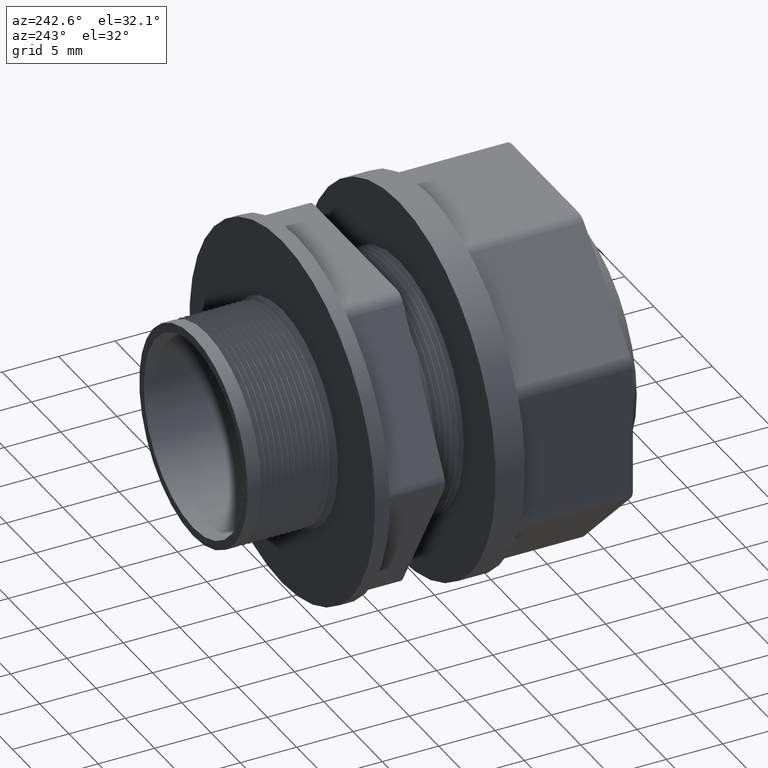
[diagram: clean part render]
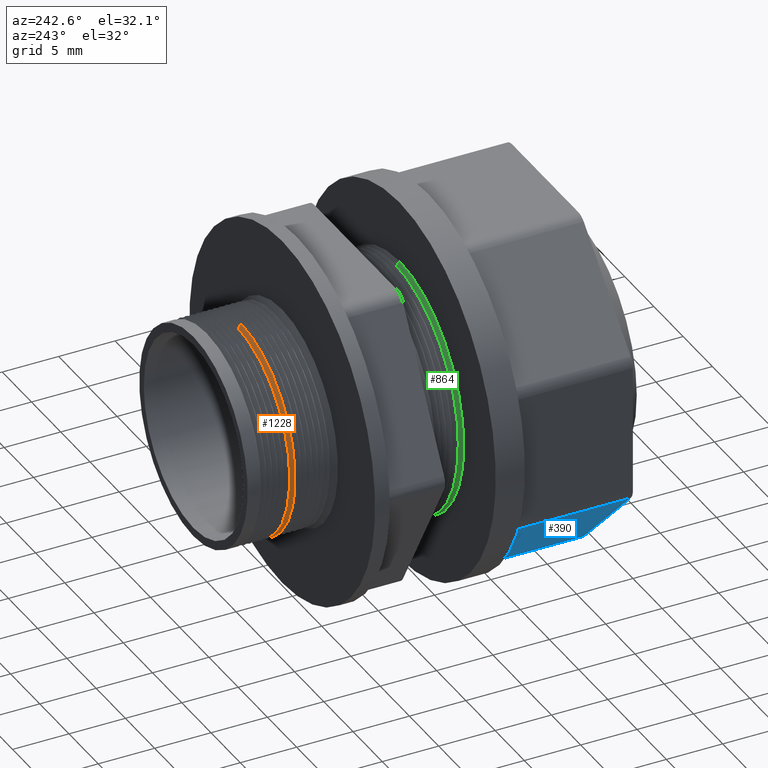
[diagram: same view with three faces highlighted in distinct colors, each labeled with its STEP entity id]
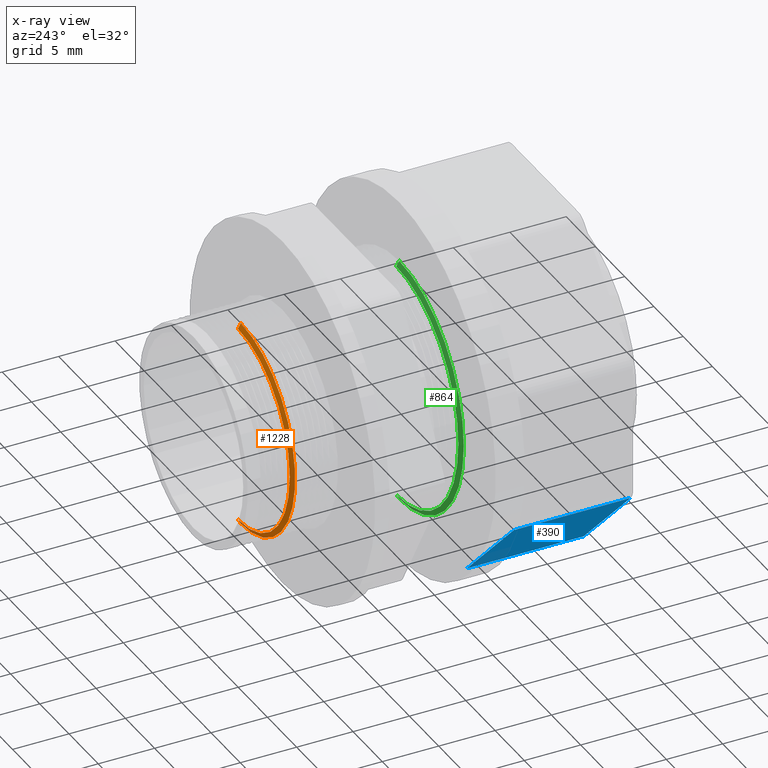
[diagram: x-ray of the same camera — body ghosted, the three highlighted faces saturated]
A machine part, auxiliary view with three faces highlighted in distinct colors.
The next image is the same camera in x-ray (body ghosted, the three faces saturated) — at least one of them is partly hidden behind the body in this view.
Their STEP definitions:

[orange] entity #1228 — the highlighted conical surface has half-angle 60.018 deg.
#359 = VERTEX_POINT ( 'NONE', #1939 ) ;
#362 = VERTEX_POINT ( 'NONE', #1938 ) ;
#363 = VERTEX_POINT ( 'NONE', #1937 ) ;
#365 = EDGE_CURVE ( 'NONE', #359, #363, #1871, .T. ) ;
#614 = EDGE_CURVE ( 'NONE', #362, #615, #2498, .T. ) ;
#615 = VERTEX_POINT ( 'NONE', #2388 ) ;
#1051 = EDGE_CURVE ( 'NONE', #615, #363, #3141, .T. ) ;
#1052 = ORIENTED_EDGE ( 'NONE', *, *, #1051, .F. ) ;
#1060 = ORIENTED_EDGE ( 'NONE', *, *, #614, .F. ) ;
#1171 = ORIENTED_EDGE ( 'NONE', *, *, #1245, .F. ) ;
#1172 = EDGE_LOOP ( 'NONE', ( #1060, #1171, #1226, #1052 ) ) ;
#1226 = ORIENTED_EDGE ( 'NONE', *, *, #365, .T. ) ;
#1228 = ADVANCED_FACE ( 'NONE', ( #3404 ), #3403, .T. ) ;
#1245 = EDGE_CURVE ( 'NONE', #359, #362, #3530, .T. ) ;
#1868 = DIRECTION ( 'NONE',  ( 0.0000000000000000000, -0.4997279054258417200, -0.8661824406778867400 ) ) ;
#1869 = VECTOR ( 'NONE', #1868, 39.37007874015748900 ) ;
#1870 = CARTESIAN_POINT ( 'NONE',  ( 0.0000000000000000000, 1.160000000000000100, -0.3749999999999999400 ) ) ;
#1871 = LINE ( 'NONE', #1870, #1869 ) ;
#1937 = CARTESIAN_POINT ( 'NONE',  ( 4.486310250598193200E-017, 1.164999092359754600, -0.3663350325760649200 ) ) ;
#1938 = CARTESIAN_POINT ( 'NONE',  ( 4.380252740682312600E-017, 1.174991837162775200, 0.3490145267796635500 ) ) ;
#1939 = CARTESIAN_POINT ( 'NONE',  ( 0.0000000000000000000, 1.174991837162775200, -0.3490145267796635500 ) ) ;
#2388 = CARTESIAN_POINT ( 'NONE',  ( 0.0000000000000000000, 1.164999092359754600, 0.3663350325760649200 ) ) ;
#2389 = DIRECTION ( 'NONE',  ( 1.060767553453816200E-016, -0.4997279054258417200, 0.8661824406778867400 ) ) ;
#2390 = VECTOR ( 'NONE', #2389, 39.37007874015748900 ) ;
#2391 = CARTESIAN_POINT ( 'NONE',  ( 4.592425496802573600E-017, 1.160000000000000100, 0.3749999999999999400 ) ) ;
#2498 = LINE ( 'NONE', #2391, #2390 ) ;
#3139 = CARTESIAN_POINT ( 'NONE',  ( 0.0000000000000000000, 1.164999092359754600, 0.0000000000000000000 ) ) ;
#3140 = AXIS2_PLACEMENT_3D ( 'NONE', #3139, #3305, #3304 ) ;
#3141 = CIRCLE ( 'NONE', #3140, 0.3663350325760648100 ) ;
#3304 = DIRECTION ( 'NONE',  ( 0.0000000000000000000, 0.0000000000000000000, -1.000000000000000000 ) ) ;
#3305 = DIRECTION ( 'NONE',  ( 0.0000000000000000000, -1.000000000000000000, 0.0000000000000000000 ) ) ;
#3399 = DIRECTION ( 'NONE',  ( 0.0000000000000000000, 0.0000000000000000000, -1.000000000000000000 ) ) ;
#3400 = DIRECTION ( 'NONE',  ( 0.0000000000000000000, -1.000000000000000000, 0.0000000000000000000 ) ) ;
#3401 = CARTESIAN_POINT ( 'NONE',  ( 0.0000000000000000000, 1.160000000000000100, 0.0000000000000000000 ) ) ;
#3402 = AXIS2_PLACEMENT_3D ( 'NONE', #3401, #3400, #3399 ) ;
#3403 = CONICAL_SURFACE ( 'NONE', #3402, 0.3749999999999999400, 1.047511710461942500 ) ;
#3404 = FACE_OUTER_BOUND ( 'NONE', #1172, .T. ) ;
#3523 = DIRECTION ( 'NONE',  ( 0.0000000000000000000, 0.0000000000000000000, 1.000000000000000000 ) ) ;
#3524 = DIRECTION ( 'NONE',  ( -0.0000000000000000000, 1.000000000000000000, -0.0000000000000000000 ) ) ;
#3525 = CARTESIAN_POINT ( 'NONE',  ( 0.0000000000000000000, 1.174991837162775200, 0.0000000000000000000 ) ) ;
#3526 = AXIS2_PLACEMENT_3D ( 'NONE', #3525, #3524, #3523 ) ;
#3530 = CIRCLE ( 'NONE', #3526, 0.3490145267796635500 ) ;

[blue] entity #390 — the highlighted planar face has unit normal (-0.7071, 0, -0.7071).
#3 = ORIENTED_EDGE ( 'NONE', *, *, #202, .T. ) ;
#4 = ORIENTED_EDGE ( 'NONE', *, *, #5, .T. ) ;
#5 = EDGE_CURVE ( 'NONE', #200, #127, #1213, .T. ) ;
#127 = VERTEX_POINT ( 'NONE', #1515 ) ;
#131 = EDGE_CURVE ( 'NONE', #134, #127, #1527, .T. ) ;
#134 = VERTEX_POINT ( 'NONE', #1474 ) ;
#200 = VERTEX_POINT ( 'NONE', #1641 ) ;
#202 = EDGE_CURVE ( 'NONE', #203, #200, #1833, .T. ) ;
#203 = VERTEX_POINT ( 'NONE', #1800 ) ;
#390 = ADVANCED_FACE ( 'NONE', ( #1999 ), #1997, .T. ) ;
#444 = EDGE_LOOP ( 'NONE', ( #445, #446, #3, #4 ) ) ;
#445 = ORIENTED_EDGE ( 'NONE', *, *, #131, .F. ) ;
#446 = ORIENTED_EDGE ( 'NONE', *, *, #447, .T. ) ;
#447 = EDGE_CURVE ( 'NONE', #134, #203, #1955, .T. ) ;
#1210 = DIRECTION ( 'NONE',  ( 0.0000000000000000000, -1.000000000000000000, 0.0000000000000000000 ) ) ;
#1211 = VECTOR ( 'NONE', #1210, 39.37007874015748100 ) ;
#1212 = CARTESIAN_POINT ( 'NONE',  ( -0.2590306627407983900, 0.5100000000000000100, -0.5753553390593273400 ) ) ;
#1213 = LINE ( 'NONE', #1212, #1211 ) ;
#1474 = CARTESIAN_POINT ( 'NONE',  ( -0.5753553390593273400, 0.1019999999999999900, -0.2590306627407988900 ) ) ;
#1515 = CARTESIAN_POINT ( 'NONE',  ( -0.2590306627407983300, 0.1019999999999999900, -0.5753553390593274500 ) ) ;
#1527 = LINE ( 'NONE', #1565, #1558 ) ;
#1557 = DIRECTION ( 'NONE',  ( 0.7071067811865479100, 0.0000000000000000000, -0.7071067811865470200 ) ) ;
#1558 = VECTOR ( 'NONE', #1557, 39.37007874015748900 ) ;
#1565 = CARTESIAN_POINT ( 'NONE',  ( -0.6521930009000629400, 0.1019999999999999900, -0.1821930009000633200 ) ) ;
#1641 = CARTESIAN_POINT ( 'NONE',  ( -0.2590306627407984500, 0.5100000000000000100, -0.5753553390593273400 ) ) ;
#1800 = CARTESIAN_POINT ( 'NONE',  ( -0.5753553390593273400, 0.5100000000000000100, -0.2590306627407988300 ) ) ;
#1801 = DIRECTION ( 'NONE',  ( 0.7071067811865479100, 0.0000000000000000000, -0.7071067811865471300 ) ) ;
#1802 = VECTOR ( 'NONE', #1801, 39.37007874015748100 ) ;
#1832 = CARTESIAN_POINT ( 'NONE',  ( -0.5899999999999999700, 0.5100000000000000100, -0.2443860018001262300 ) ) ;
#1833 = LINE ( 'NONE', #1832, #1802 ) ;
#1952 = DIRECTION ( 'NONE',  ( -0.0000000000000000000, 1.000000000000000000, -0.0000000000000000000 ) ) ;
#1953 = VECTOR ( 'NONE', #1952, 39.37007874015748100 ) ;
#1954 = CARTESIAN_POINT ( 'NONE',  ( -0.5753553390593273400, 0.5100000000000000100, -0.2590306627407988300 ) ) ;
#1955 = LINE ( 'NONE', #1954, #1953 ) ;
#1993 = DIRECTION ( 'NONE',  ( -0.7071067811865479100, 0.0000000000000000000, 0.7071067811865470200 ) ) ;
#1994 = DIRECTION ( 'NONE',  ( -0.7071067811865471300, 0.0000000000000000000, -0.7071067811865480200 ) ) ;
#1995 = CARTESIAN_POINT ( 'NONE',  ( -0.5899999999999999700, 0.5100000000000000100, -0.2443860018001262300 ) ) ;
#1996 = AXIS2_PLACEMENT_3D ( 'NONE', #1995, #1994, #1993 ) ;
#1997 = PLANE ( 'NONE',  #1996 ) ;
#1999 = FACE_OUTER_BOUND ( 'NONE', #444, .T. ) ;

[green] entity #864 — the highlighted conical surface has half-angle 59.505 deg.
#702 = VERTEX_POINT ( 'NONE', #2576 ) ;
#704 = EDGE_CURVE ( 'NONE', #717, #702, #2575, .T. ) ;
#716 = VERTEX_POINT ( 'NONE', #2661 ) ;
#717 = VERTEX_POINT ( 'NONE', #2660 ) ;
#730 = EDGE_CURVE ( 'NONE', #716, #731, #2606, .T. ) ;
#731 = VERTEX_POINT ( 'NONE', #2602 ) ;
#820 = EDGE_CURVE ( 'NONE', #702, #731, #2706, .T. ) ;
#863 = EDGE_CURVE ( 'NONE', #717, #716, #2822, .T. ) ;
#864 = ADVANCED_FACE ( 'NONE', ( #2829 ), #2843, .T. ) ;
#937 = ORIENTED_EDGE ( 'NONE', *, *, #730, .F. ) ;
#939 = ORIENTED_EDGE ( 'NONE', *, *, #704, .T. ) ;
#949 = ORIENTED_EDGE ( 'NONE', *, *, #863, .F. ) ;
#951 = ORIENTED_EDGE ( 'NONE', *, *, #820, .T. ) ;
#959 = EDGE_LOOP ( 'NONE', ( #937, #949, #939, #951 ) ) ;
#2574 = CARTESIAN_POINT ( 'NONE',  ( 0.0000000000000000000, 0.6119999999999998800, -0.4350000000000000500 ) ) ;
#2575 = LINE ( 'NONE', #2574, #2598 ) ;
#2576 = CARTESIAN_POINT ( 'NONE',  ( 0.0000000000000000000, 0.6119999999999998800, -0.4350000000000000500 ) ) ;
#2597 = DIRECTION ( 'NONE',  ( 0.0000000000000000000, -0.5074644682075845100, -0.8616726835096917300 ) ) ;
#2598 = VECTOR ( 'NONE', #2597, 39.37007874015748100 ) ;
#2602 = CARTESIAN_POINT ( 'NONE',  ( 5.327213576290987000E-017, 0.6119999999999998800, 0.4350000000000000500 ) ) ;
#2603 = DIRECTION ( 'NONE',  ( 1.055244693772854200E-016, -0.5074644682075845100, 0.8616726835096917300 ) ) ;
#2604 = VECTOR ( 'NONE', #2603, 39.37007874015748100 ) ;
#2605 = CARTESIAN_POINT ( 'NONE',  ( 5.327213576290987000E-017, 0.6119999999999998800, 0.4350000000000000500 ) ) ;
#2606 = LINE ( 'NONE', #2605, #2604 ) ;
#2660 = CARTESIAN_POINT ( 'NONE',  ( 0.0000000000000000000, 0.6221995427989423000, -0.4176812161939553200 ) ) ;
#2661 = CARTESIAN_POINT ( 'NONE',  ( 5.221166610524998100E-017, 0.6221995427989423000, 0.4176812161939553200 ) ) ;
#2702 = DIRECTION ( 'NONE',  ( 0.0000000000000000000, 0.0000000000000000000, 1.000000000000000000 ) ) ;
#2703 = DIRECTION ( 'NONE',  ( -0.0000000000000000000, 1.000000000000000000, -0.0000000000000000000 ) ) ;
#2704 = CARTESIAN_POINT ( 'NONE',  ( 0.0000000000000000000, 0.6119999999999998800, 0.0000000000000000000 ) ) ;
#2705 = AXIS2_PLACEMENT_3D ( 'NONE', #2704, #2703, #2702 ) ;
#2706 = CIRCLE ( 'NONE', #2705, 0.4350000000000000500 ) ;
#2822 = CIRCLE ( 'NONE', #2831, 0.4176812161939553200 ) ;
#2826 = DIRECTION ( 'NONE',  ( 0.0000000000000000000, 0.0000000000000000000, -1.000000000000000000 ) ) ;
#2827 = DIRECTION ( 'NONE',  ( 0.0000000000000000000, -1.000000000000000000, 0.0000000000000000000 ) ) ;
#2828 = CARTESIAN_POINT ( 'NONE',  ( 0.0000000000000000000, 0.6221995427989423000, 0.0000000000000000000 ) ) ;
#2829 = FACE_OUTER_BOUND ( 'NONE', #959, .T. ) ;
#2830 = DIRECTION ( 'NONE',  ( -0.0000000000000000000, 1.000000000000000000, -0.0000000000000000000 ) ) ;
#2831 = AXIS2_PLACEMENT_3D ( 'NONE', #2828, #2830, #2844 ) ;
#2842 = AXIS2_PLACEMENT_3D ( 'NONE', #2845, #2827, #2826 ) ;
#2843 = CONICAL_SURFACE ( 'NONE', #2842, 0.4350000000000000500, 1.038556664437590800 ) ;
#2844 = DIRECTION ( 'NONE',  ( 0.0000000000000000000, 0.0000000000000000000, 1.000000000000000000 ) ) ;
#2845 = CARTESIAN_POINT ( 'NONE',  ( 0.0000000000000000000, 0.6119999999999998800, 0.0000000000000000000 ) ) ;